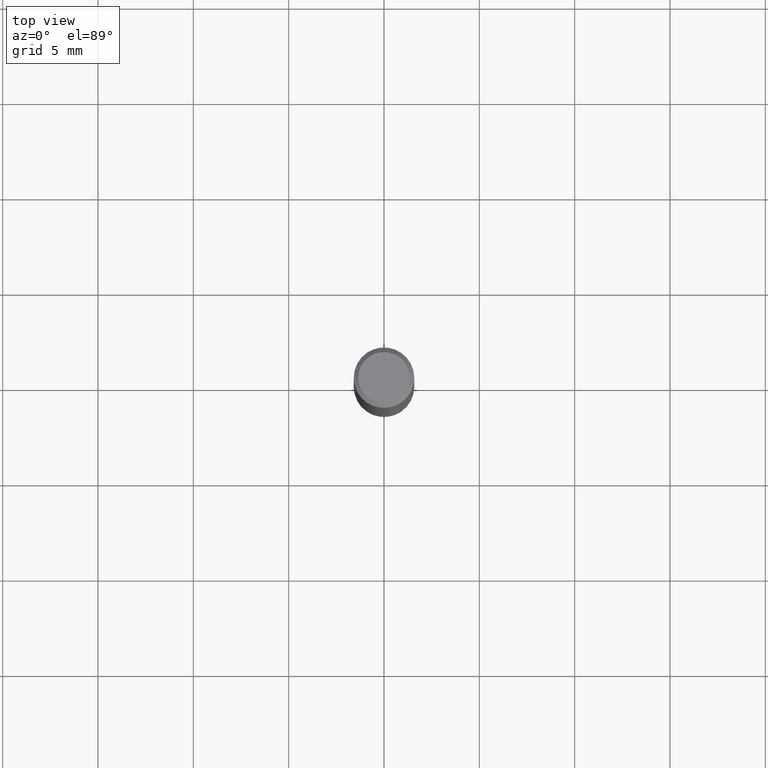
[diagram: clean part render]
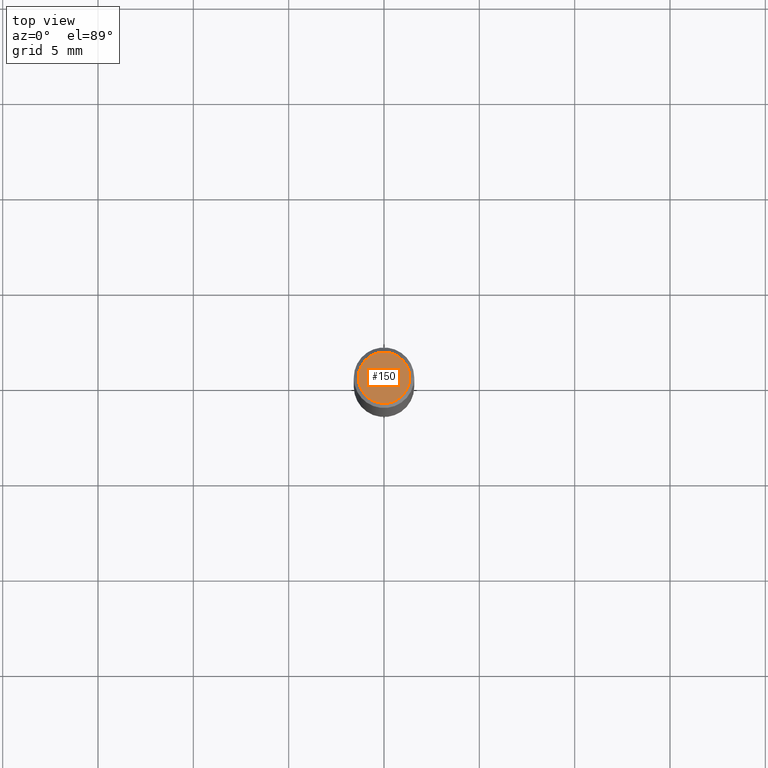
[diagram: same view with one face highlighted and labeled with its STEP entity id]
A machine part, top view. The second image highlights one B-rep face of the part: STEP entity #150.
In plain terms, the highlighted planar face has unit normal (0, -0, -1).
Its self-contained STEP definition (entity closure, byte-faithful):
#31 = CARTESIAN_POINT ( 'NONE',  ( -0.05312499999999999861, 3.873362110279099094E-16, -5.787680772773044021E-18 ) ) ;
#37 = DIRECTION ( 'NONE',  ( -2.445468806185136597E-29, 3.491481338843145583E-15, 1.000000000000000000 ) ) ;
#38 = PLANE ( 'NONE',  #324 ) ;
#63 = CIRCLE ( 'NONE', #156, 0.05312499999999999861 ) ;
#69 = VERTEX_POINT ( 'NONE', #399 ) ;
#123 = DIRECTION ( 'NONE',  ( -2.445468806185136597E-29, 3.491481338843145583E-15, 1.000000000000000000 ) ) ;
#150 = ADVANCED_FACE ( 'NONE', ( #544 ), #38, .F. ) ;
#156 = AXIS2_PLACEMENT_3D ( 'NONE', #296, #37, #432 ) ;
#217 = EDGE_LOOP ( 'NONE', ( #320, #379 ) ) ;
#254 = AXIS2_PLACEMENT_3D ( 'NONE', #387, #123, #385 ) ;
#258 = DIRECTION ( 'NONE',  ( -1.000000000000000000, 6.982962677686265922E-15, -4.876176775795935793E-29 ) ) ;
#296 = CARTESIAN_POINT ( 'NONE',  ( 1.415359278996747967E-46, -2.020757941330909984E-32, -5.787680772770392401E-18 ) ) ;
#299 = CARTESIAN_POINT ( 'NONE',  ( 7.076796394983739835E-47, -1.010378970665454992E-32, -2.893840386385196200E-18 ) ) ;
#320 = ORIENTED_EDGE ( 'NONE', *, *, #429, .T. ) ;
#324 = AXIS2_PLACEMENT_3D ( 'NONE', #299, #576, #258 ) ;
#379 = ORIENTED_EDGE ( 'NONE', *, *, #543, .T. ) ;
#385 = DIRECTION ( 'NONE',  ( 1.000000000000000000, -6.982962677686266711E-15, 4.875930095424100059E-29 ) ) ;
#387 = CARTESIAN_POINT ( 'NONE',  ( 1.415359278996747967E-46, -2.020757941330909984E-32, -5.787680772770392401E-18 ) ) ;
#399 = CARTESIAN_POINT ( 'NONE',  ( 0.05312499999999999861, -4.129888592719939842E-16, -5.787680772767651417E-18 ) ) ;
#429 = EDGE_CURVE ( 'NONE', #509, #69, #63, .T. ) ;
#432 = DIRECTION ( 'NONE',  ( 1.000000000000000000, -6.982962677686266711E-15, 4.875930095424100059E-29 ) ) ;
#452 = CIRCLE ( 'NONE', #254, 0.05312499999999999861 ) ;
#509 = VERTEX_POINT ( 'NONE', #31 ) ;
#543 = EDGE_CURVE ( 'NONE', #69, #509, #452, .T. ) ;
#544 = FACE_OUTER_BOUND ( 'NONE', #217, .T. ) ;
#576 = DIRECTION ( 'NONE',  ( 2.438088387897960049E-29, -3.491481338843145188E-15, -1.000000000000000000 ) ) ;